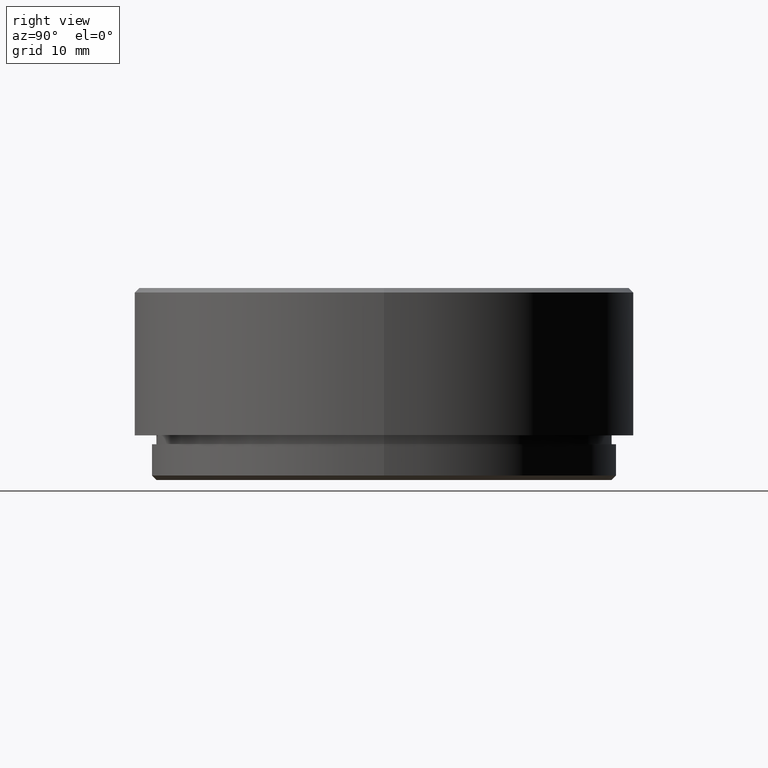
[diagram: clean part render]
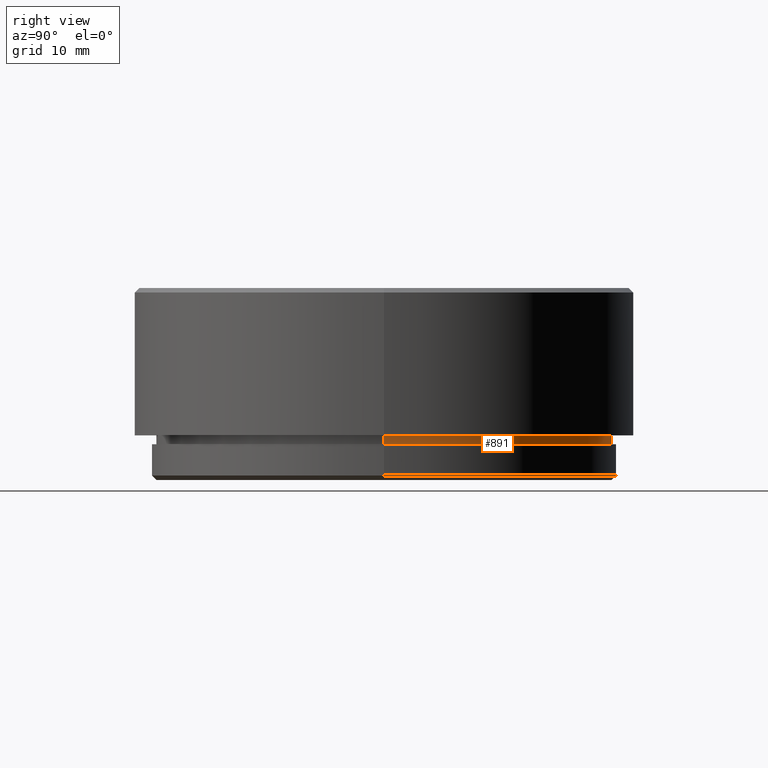
[diagram: same view with one face highlighted and labeled with its STEP entity id]
A machine part, right view. The second image highlights one B-rep face of the part: STEP entity #891.
In plain terms, the highlighted cylindrical surface (partial cylindrical patch) has radius 25.5 mm, axis along (0, 0, 1).
Its self-contained STEP definition (entity closure, byte-faithful):
#19 = CARTESIAN_POINT ( 'NONE',  ( -25.50000000000000000, 3.122849337825750222E-15, 4.000000000000000000 ) ) ;
#35 = CARTESIAN_POINT ( 'NONE',  ( 25.50000000000000000, 0.000000000000000000, 5.000000000000000000 ) ) ;
#78 = VECTOR ( 'NONE', #319, 1000.000000000000000 ) ;
#82 = VERTEX_POINT ( 'NONE', #19 ) ;
#115 = ORIENTED_EDGE ( 'NONE', *, *, #1245, .T. ) ;
#227 = DIRECTION ( 'NONE',  ( 0.000000000000000000, 0.000000000000000000, 1.000000000000000000 ) ) ;
#262 = CARTESIAN_POINT ( 'NONE',  ( 0.000000000000000000, 0.000000000000000000, 4.000000000000000000 ) ) ;
#273 = CARTESIAN_POINT ( 'NONE',  ( -25.50000000000000000, 3.122849337825750222E-15, 5.000000000000000000 ) ) ;
#277 = CARTESIAN_POINT ( 'NONE',  ( 0.000000000000000000, 0.000000000000000000, 4.000000000000000000 ) ) ;
#279 = EDGE_CURVE ( 'NONE', #1140, #1169, #361, .T. ) ;
#285 = DIRECTION ( 'NONE',  ( 0.000000000000000000, 0.000000000000000000, -1.000000000000000000 ) ) ;
#290 = DIRECTION ( 'NONE',  ( 1.000000000000000000, 0.000000000000000000, 0.000000000000000000 ) ) ;
#319 = DIRECTION ( 'NONE',  ( 0.000000000000000000, 0.000000000000000000, 1.000000000000000000 ) ) ;
#361 = LINE ( 'NONE', #1176, #702 ) ;
#399 = DIRECTION ( 'NONE',  ( -1.000000000000000000, 0.000000000000000000, 0.000000000000000000 ) ) ;
#509 = CIRCLE ( 'NONE', #1573, 25.50000000000000000 ) ;
#588 = FACE_OUTER_BOUND ( 'NONE', #1275, .T. ) ;
#651 = EDGE_CURVE ( 'NONE', #82, #1140, #1199, .T. ) ;
#702 = VECTOR ( 'NONE', #227, 1000.000000000000000 ) ;
#838 = AXIS2_PLACEMENT_3D ( 'NONE', #277, #1132, #290 ) ;
#891 = ADVANCED_FACE ( 'NONE', ( #588 ), #1409, .T. ) ;
#906 = EDGE_CURVE ( 'NONE', #82, #1750, #1685, .T. ) ;
#934 = DIRECTION ( 'NONE',  ( 0.000000000000000000, 0.000000000000000000, -1.000000000000000000 ) ) ;
#948 = CARTESIAN_POINT ( 'NONE',  ( 0.000000000000000000, 0.000000000000000000, 5.000000000000000000 ) ) ;
#1002 = CARTESIAN_POINT ( 'NONE',  ( -25.50000000000000000, 3.122849337825750222E-15, 4.000000000000000000 ) ) ;
#1049 = CARTESIAN_POINT ( 'NONE',  ( 25.50000000000000000, 0.000000000000000000, 4.000000000000000000 ) ) ;
#1132 = DIRECTION ( 'NONE',  ( 0.000000000000000000, 0.000000000000000000, 1.000000000000000000 ) ) ;
#1140 = VERTEX_POINT ( 'NONE', #1049 ) ;
#1169 = VERTEX_POINT ( 'NONE', #35 ) ;
#1170 = ORIENTED_EDGE ( 'NONE', *, *, #906, .T. ) ;
#1176 = CARTESIAN_POINT ( 'NONE',  ( 25.50000000000000000, 0.000000000000000000, 4.000000000000000000 ) ) ;
#1199 = CIRCLE ( 'NONE', #1544, 25.50000000000000000 ) ;
#1245 = EDGE_CURVE ( 'NONE', #1750, #1169, #509, .T. ) ;
#1275 = EDGE_LOOP ( 'NONE', ( #1369, #1170, #115, #1393 ) ) ;
#1369 = ORIENTED_EDGE ( 'NONE', *, *, #651, .F. ) ;
#1393 = ORIENTED_EDGE ( 'NONE', *, *, #279, .F. ) ;
#1409 = CYLINDRICAL_SURFACE ( 'NONE', #838, 25.50000000000000000 ) ;
#1536 = DIRECTION ( 'NONE',  ( -1.000000000000000000, 0.000000000000000000, 0.000000000000000000 ) ) ;
#1544 = AXIS2_PLACEMENT_3D ( 'NONE', #262, #934, #399 ) ;
#1573 = AXIS2_PLACEMENT_3D ( 'NONE', #948, #285, #1536 ) ;
#1685 = LINE ( 'NONE', #1002, #78 ) ;
#1750 = VERTEX_POINT ( 'NONE', #273 ) ;